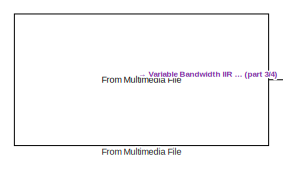
[diagram: root canvas - part 1/4, top left region]
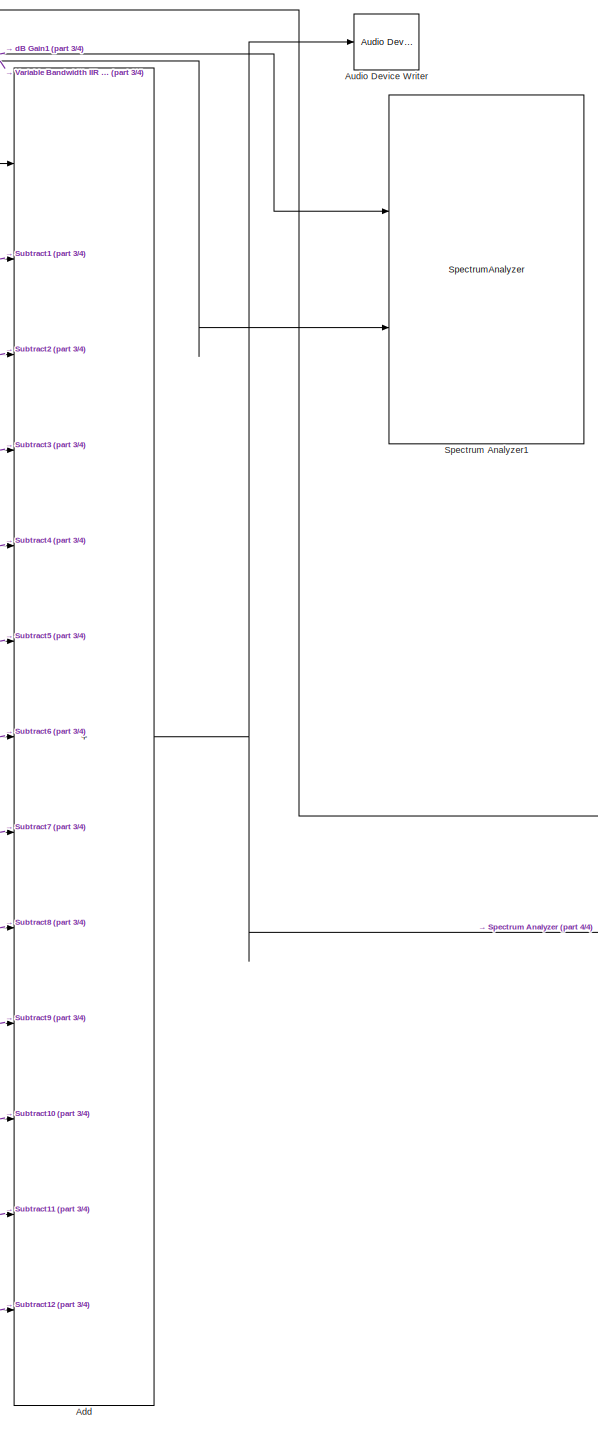
[diagram: root canvas - part 2/4, right side, full height]
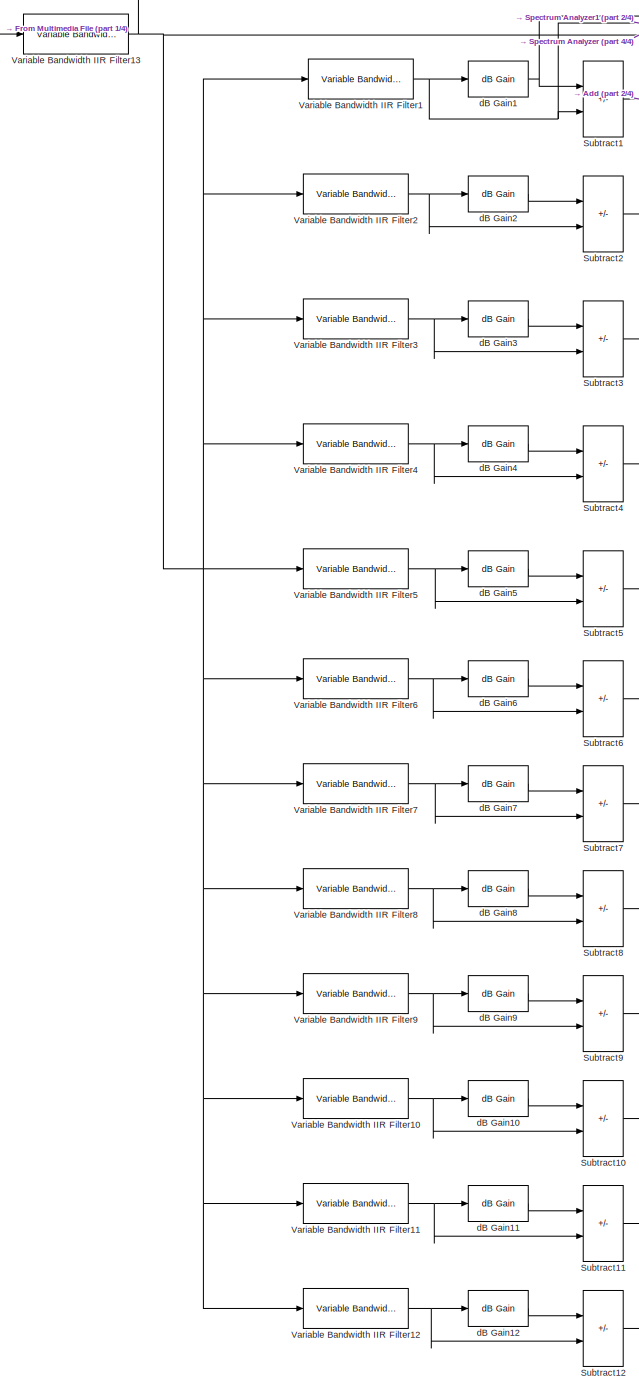
[diagram: root canvas - part 3/4, center side, full height]
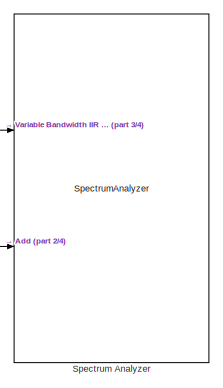
[diagram: root canvas - part 4/4, middle right region]
MODEL slx_a2138ad9f959
KIND model
CONFIG AbsTol = auto
CONFIG EnableMultiTasking = off
CONFIG FixedStep = auto
CONFIG MaxStep = auto
CONFIG MinStep = auto
CONFIG RelTol = 1e-3
CONFIG SampleTimeConstraint = Unconstrained
CONFIG SolverName = VariableStepAuto
CONFIG StartTime = 0.0
CONFIG StopTime = inf
BLOCK [Sum] Add
  IconShape = rectangular
  Inputs = +++++++++++++
  Ports = [13, 1]
BLOCK [Reference] Audio Device Writer  REF=dspsnks4/Audio Device
Writer
  Ports = [1]
  SourceBlock = dspsnks4/Audio Device\nWriter
  SourceProductBaseCode = DS
  SourceType = Audio Device Writer
BLOCK [Reference] From Multimedia File  REF=dspvision/From Multimedia File
  Ports = [0, 1]
  SourceBlock = dspvision/From Multimedia File
  SourceProductBaseCode = DS,HW,VP
  SourceType = From Multimedia File
BLOCK [SpectrumAnalyzer] Spectrum Analyzer
  Commented = on
  NumInputPorts = 2
  Ports = [2]
  ScopeSpecificationString = spbscopes.SpectrumAnalyzerBlockCfg('CurrentConfiguration', extmgr.ConfigurationSet(extmgr.Configuration('Core','General UI',true),extmgr.Configuration('Core','Source UI',true),extmgr.Configuration('Sources','WiredSimulink',true),extmgr.Configuration('Sources','SimulinkEvent',false),extmgr.Configuration('Sources','Simulink',false),extmgr.Configuration('Sources','File',false),extmgr.Configuration('S...<+4079ch>
BLOCK [SpectrumAnalyzer] Spectrum Analyzer1
  Commented = on
  NumInputPorts = 2
  Ports = [2]
  ScopeSpecificationString = spbscopes.SpectrumAnalyzerBlockCfg('CurrentConfiguration', extmgr.ConfigurationSet(extmgr.Configuration('Core','General UI',true),extmgr.Configuration('Core','Source UI',true),extmgr.Configuration('Sources','WiredSimulink',true),extmgr.Configuration('Sources','SimulinkEvent',false),extmgr.Configuration('Sources','Simulink',false),extmgr.Configuration('Sources','File',false),extmgr.Configuration('S...<+4113ch>
BLOCK [Sum] Subtract1
  IconShape = rectangular
  Inputs = +-
  Ports = [2, 1]
BLOCK [Sum] Subtract10
  IconShape = rectangular
  Inputs = +-
  Ports = [2, 1]
BLOCK [Sum] Subtract11
  IconShape = rectangular
  Inputs = +-
  Ports = [2, 1]
BLOCK [Sum] Subtract12
  IconShape = rectangular
  Inputs = +-
  Ports = [2, 1]
BLOCK [Sum] Subtract2
  IconShape = rectangular
  Inputs = +-
  Ports = [2, 1]
BLOCK [Sum] Subtract3
  IconShape = rectangular
  Inputs = +-
  Ports = [2, 1]
BLOCK [Sum] Subtract4
  IconShape = rectangular
  Inputs = +-
  Ports = [2, 1]
BLOCK [Sum] Subtract5
  IconShape = rectangular
  Inputs = +-
  Ports = [2, 1]
BLOCK [Sum] Subtract6
  IconShape = rectangular
  Inputs = +-
  Ports = [2, 1]
BLOCK [Sum] Subtract7
  IconShape = rectangular
  Inputs = +-
  Ports = [2, 1]
BLOCK [Sum] Subtract8
  IconShape = rectangular
  Inputs = +-
  Ports = [2, 1]
BLOCK [Sum] Subtract9
  IconShape = rectangular
  Inputs = +-
  Ports = [2, 1]
BLOCK [Reference] Variable Bandwidth IIR Filter1  REF=dspfdesign/Variable Bandwidth
IIR Filter
  Ports = [1, 1]
  SourceBlock = dspfdesign/Variable Bandwidth\nIIR Filter
  SourceProductBaseCode = DS
  SourceType = dsp.simulink.VariableBandwidthIIRFilter
BLOCK [Reference] Variable Bandwidth IIR Filter10  REF=dspfdesign/Variable Bandwidth
IIR Filter
  Ports = [1, 1]
  SourceBlock = dspfdesign/Variable Bandwidth\nIIR Filter
  SourceProductBaseCode = DS
  SourceType = dsp.simulink.VariableBandwidthIIRFilter
BLOCK [Reference] Variable Bandwidth IIR Filter11  REF=dspfdesign/Variable Bandwidth
IIR Filter
  Ports = [1, 1]
  SourceBlock = dspfdesign/Variable Bandwidth\nIIR Filter
  SourceProductBaseCode = DS
  SourceType = dsp.simulink.VariableBandwidthIIRFilter
BLOCK [Reference] Variable Bandwidth IIR Filter12  REF=dspfdesign/Variable Bandwidth
IIR Filter
  Ports = [1, 1]
  SourceBlock = dspfdesign/Variable Bandwidth\nIIR Filter
  SourceProductBaseCode = DS
  SourceType = dsp.simulink.VariableBandwidthIIRFilter
BLOCK [Reference] Variable Bandwidth IIR Filter13  REF=dspfdesign/Variable Bandwidth
IIR Filter
  Commented = through
  Ports = [1, 1]
  SourceBlock = dspfdesign/Variable Bandwidth\nIIR Filter
  SourceProductBaseCode = DS
  SourceType = dsp.simulink.VariableBandwidthIIRFilter
BLOCK [Reference] Variable Bandwidth IIR Filter2  REF=dspfdesign/Variable Bandwidth
IIR Filter
  Ports = [1, 1]
  SourceBlock = dspfdesign/Variable Bandwidth\nIIR Filter
  SourceProductBaseCode = DS
  SourceType = dsp.simulink.VariableBandwidthIIRFilter
BLOCK [Reference] Variable Bandwidth IIR Filter3  REF=dspfdesign/Variable Bandwidth
IIR Filter
  Ports = [1, 1]
  SourceBlock = dspfdesign/Variable Bandwidth\nIIR Filter
  SourceProductBaseCode = DS
  SourceType = dsp.simulink.VariableBandwidthIIRFilter
BLOCK [Reference] Variable Bandwidth IIR Filter4  REF=dspfdesign/Variable Bandwidth
IIR Filter
  Ports = [1, 1]
  SourceBlock = dspfdesign/Variable Bandwidth\nIIR Filter
  SourceProductBaseCode = DS
  SourceType = dsp.simulink.VariableBandwidthIIRFilter
BLOCK [Reference] Variable Bandwidth IIR Filter5  REF=dspfdesign/Variable Bandwidth
IIR Filter
  Ports = [1, 1]
  SourceBlock = dspfdesign/Variable Bandwidth\nIIR Filter
  SourceProductBaseCode = DS
  SourceType = dsp.simulink.VariableBandwidthIIRFilter
BLOCK [Reference] Variable Bandwidth IIR Filter6  REF=dspfdesign/Variable Bandwidth
IIR Filter
  Ports = [1, 1]
  SourceBlock = dspfdesign/Variable Bandwidth\nIIR Filter
  SourceProductBaseCode = DS
  SourceType = dsp.simulink.VariableBandwidthIIRFilter
BLOCK [Reference] Variable Bandwidth IIR Filter7  REF=dspfdesign/Variable Bandwidth
IIR Filter
  Ports = [1, 1]
  SourceBlock = dspfdesign/Variable Bandwidth\nIIR Filter
  SourceProductBaseCode = DS
  SourceType = dsp.simulink.VariableBandwidthIIRFilter
BLOCK [Reference] Variable Bandwidth IIR Filter8  REF=dspfdesign/Variable Bandwidth
IIR Filter
  Ports = [1, 1]
  SourceBlock = dspfdesign/Variable Bandwidth\nIIR Filter
  SourceProductBaseCode = DS
  SourceType = dsp.simulink.VariableBandwidthIIRFilter
BLOCK [Reference] Variable Bandwidth IIR Filter9  REF=dspfdesign/Variable Bandwidth
IIR Filter
  Ports = [1, 1]
  SourceBlock = dspfdesign/Variable Bandwidth\nIIR Filter
  SourceProductBaseCode = DS
  SourceType = dsp.simulink.VariableBandwidthIIRFilter
BLOCK [Reference] dB Gain1  REF=dspmathops/dB Gain
  Ports = [1, 1]
  SourceBlock = dspmathops/dB Gain
  SourceProductBaseCode = DS
  SourceType = dB Gain
BLOCK [Reference] dB Gain10  REF=dspmathops/dB Gain
  Ports = [1, 1]
  SourceBlock = dspmathops/dB Gain
  SourceProductBaseCode = DS
  SourceType = dB Gain
BLOCK [Reference] dB Gain11  REF=dspmathops/dB Gain
  Ports = [1, 1]
  SourceBlock = dspmathops/dB Gain
  SourceProductBaseCode = DS
  SourceType = dB Gain
BLOCK [Reference] dB Gain12  REF=dspmathops/dB Gain
  Ports = [1, 1]
  SourceBlock = dspmathops/dB Gain
  SourceProductBaseCode = DS
  SourceType = dB Gain
BLOCK [Reference] dB Gain2  REF=dspmathops/dB Gain
  Ports = [1, 1]
  SourceBlock = dspmathops/dB Gain
  SourceProductBaseCode = DS
  SourceType = dB Gain
BLOCK [Reference] dB Gain3  REF=dspmathops/dB Gain
  Ports = [1, 1]
  SourceBlock = dspmathops/dB Gain
  SourceProductBaseCode = DS
  SourceType = dB Gain
BLOCK [Reference] dB Gain4  REF=dspmathops/dB Gain
  Ports = [1, 1]
  SourceBlock = dspmathops/dB Gain
  SourceProductBaseCode = DS
  SourceType = dB Gain
BLOCK [Reference] dB Gain5  REF=dspmathops/dB Gain
  Ports = [1, 1]
  SourceBlock = dspmathops/dB Gain
  SourceProductBaseCode = DS
  SourceType = dB Gain
BLOCK [Reference] dB Gain6  REF=dspmathops/dB Gain
  Ports = [1, 1]
  SourceBlock = dspmathops/dB Gain
  SourceProductBaseCode = DS
  SourceType = dB Gain
BLOCK [Reference] dB Gain7  REF=dspmathops/dB Gain
  Ports = [1, 1]
  SourceBlock = dspmathops/dB Gain
  SourceProductBaseCode = DS
  SourceType = dB Gain
BLOCK [Reference] dB Gain8  REF=dspmathops/dB Gain
  Ports = [1, 1]
  SourceBlock = dspmathops/dB Gain
  SourceProductBaseCode = DS
  SourceType = dB Gain
BLOCK [Reference] dB Gain9  REF=dspmathops/dB Gain
  Ports = [1, 1]
  SourceBlock = dspmathops/dB Gain
  SourceProductBaseCode = DS
  SourceType = dB Gain
NET Add:1 -> Audio Device Writer:1, Spectrum Analyzer:2
LINE From Multimedia File:1 -> Variable Bandwidth IIR Filter13:1
LINE Subtract10:1 -> Add:11
LINE Subtract11:1 -> Add:12
LINE Subtract12:1 -> Add:13
LINE Subtract1:1 -> Add:2
LINE Subtract2:1 -> Add:3
LINE Subtract3:1 -> Add:4
LINE Subtract4:1 -> Add:5
LINE Subtract5:1 -> Add:6
LINE Subtract6:1 -> Add:7
LINE Subtract7:1 -> Add:8
LINE Subtract8:1 -> Add:9
LINE Subtract9:1 -> Add:10
NET Variable Bandwidth IIR Filter10:1 -> Subtract10:2, dB Gain10:1
NET Variable Bandwidth IIR Filter11:1 -> Subtract11:2, dB Gain11:1
NET Variable Bandwidth IIR Filter12:1 -> Subtract12:2, dB Gain12:1
NET Variable Bandwidth IIR Filter13:1 -> Add:1, Spectrum Analyzer:1, Variable Bandwidth IIR Filter10:1, Variable Bandwidth IIR Filter11:1, Variable Bandwidth IIR Filter12:1, Variable Bandwidth IIR Filter1:1, Variable Bandwidth IIR Filter2:1, Variable Bandwidth IIR Filter3:1, Variable Bandwidth IIR Filter4:1, Variable Bandwidth IIR Filter5:1, Variable Bandwidth IIR Filter6:1, Variable Bandwidth IIR Filter7:1, Variable Bandwidth IIR Filter8:1, Variable Bandwidth IIR Filter9:1
NET Variable Bandwidth IIR Filter1:1 -> Spectrum Analyzer1:2, Subtract1:2, dB Gain1:1
NET Variable Bandwidth IIR Filter2:1 -> Subtract2:2, dB Gain2:1
NET Variable Bandwidth IIR Filter3:1 -> Subtract3:2, dB Gain3:1
NET Variable Bandwidth IIR Filter4:1 -> Subtract4:2, dB Gain4:1
NET Variable Bandwidth IIR Filter5:1 -> Subtract5:2, dB Gain5:1
NET Variable Bandwidth IIR Filter6:1 -> Subtract6:2, dB Gain6:1
NET Variable Bandwidth IIR Filter7:1 -> Subtract7:2, dB Gain7:1
NET Variable Bandwidth IIR Filter8:1 -> Subtract8:2, dB Gain8:1
NET Variable Bandwidth IIR Filter9:1 -> Subtract9:2, dB Gain9:1
LINE dB Gain10:1 -> Subtract10:1
LINE dB Gain11:1 -> Subtract11:1
LINE dB Gain12:1 -> Subtract12:1
NET dB Gain1:1 -> Spectrum Analyzer1:1, Subtract1:1
LINE dB Gain2:1 -> Subtract2:1
LINE dB Gain3:1 -> Subtract3:1
LINE dB Gain4:1 -> Subtract4:1
LINE dB Gain5:1 -> Subtract5:1
LINE dB Gain6:1 -> Subtract6:1
LINE dB Gain7:1 -> Subtract7:1
LINE dB Gain8:1 -> Subtract8:1
LINE dB Gain9:1 -> Subtract9:1
note: NET lines group one-source signal fan-out (src -> all destinations, sorted); 1:1 wires keep LINE
